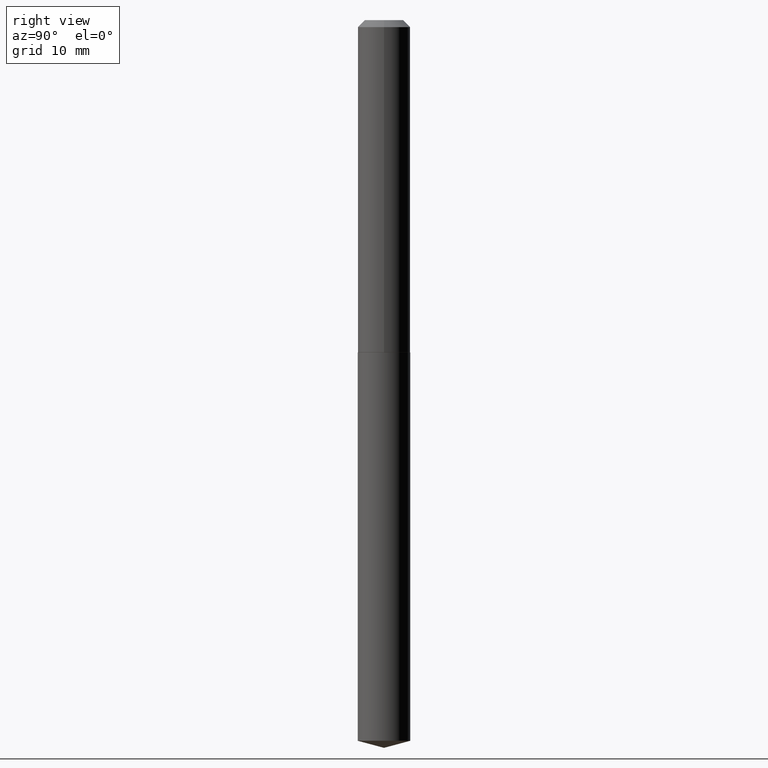
[diagram: clean part render]
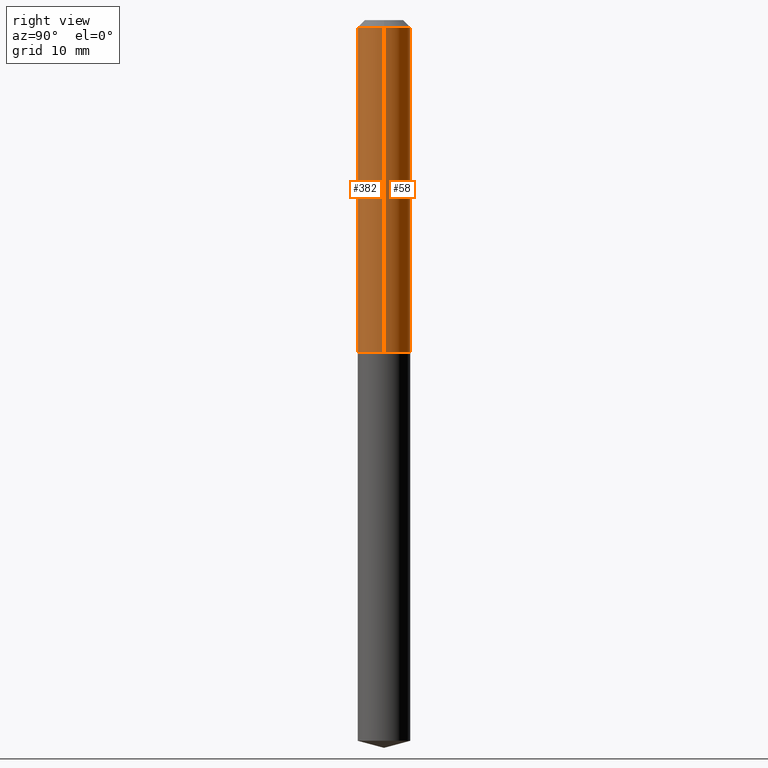
[diagram: same view with one multi-face feature highlighted, each face labeled with its STEP entity id]
A machine part, right view. The highlighted faces form ONE feature: a constant-radius fillet chain: 2 tangent blend faces with common blend radius 2.9769 mm. The faces share edges in the B-rep.
Their STEP definitions:
[1] entity #58 (Cylinder):
#3 = CIRCLE ( 'NONE', #188, 0.1172000000000002068 ) ;
#4 = CARTESIAN_POINT ( 'NONE',  ( 3.628831161498124311E-29, -5.181009158709343395E-15, -1.483899999999999997 ) ) ;
#21 = VERTEX_POINT ( 'NONE', #217 ) ;
#24 = DIRECTION ( 'NONE',  ( 1.000000000000000000, -6.982962677686266711E-15, 4.876176775795935793E-29 ) ) ;
#31 = FACE_OUTER_BOUND ( 'NONE', #262, .T. ) ;
#34 = DIRECTION ( 'NONE',  ( -2.445468806185136597E-29, 3.491481338843145583E-15, 1.000000000000000000 ) ) ;
#37 = LINE ( 'NONE', #345, #379 ) ;
#53 = CARTESIAN_POINT ( 'NONE',  ( -0.1172000000000000125, -1.812302888963257065E-15, -0.03125000000000020123 ) ) ;
#54 = AXIS2_PLACEMENT_3D ( 'NONE', #165, #34, #344 ) ;
#58 = ADVANCED_FACE ( 'NONE', ( #31 ), #128, .T. ) ;
#74 = DIRECTION ( 'NONE',  ( -2.445468806185136877E-29, 3.491481338843145188E-15, 1.000000000000000000 ) ) ;
#82 = EDGE_CURVE ( 'NONE', #378, #273, #3, .T. ) ;
#84 = DIRECTION ( 'NONE',  ( -2.445468806185136597E-29, 3.491481338843145583E-15, 1.000000000000000000 ) ) ;
#102 = CARTESIAN_POINT ( 'NONE',  ( -0.1172000000000002068, -4.348253072398504607E-15, -1.483899999999999997 ) ) ;
#104 = DIRECTION ( 'NONE',  ( -2.445468806185136877E-29, 3.491481338843145188E-15, 1.000000000000000000 ) ) ;
#107 = LINE ( 'NONE', #350, #342 ) ;
#110 = ORIENTED_EDGE ( 'NONE', *, *, #300, .F. ) ;
#115 = VERTEX_POINT ( 'NONE', #53 ) ;
#128 = CYLINDRICAL_SURFACE ( 'NONE', #294, 0.1172000000000001235 ) ;
#146 = ORIENTED_EDGE ( 'NONE', *, *, #234, .T. ) ;
#165 = CARTESIAN_POINT ( 'NONE',  ( 7.642090019328600035E-31, -1.091087918388489897E-16, -0.03125000000000020123 ) ) ;
#188 = AXIS2_PLACEMENT_3D ( 'NONE', #4, #367, #307 ) ;
#205 = CARTESIAN_POINT ( 'NONE',  ( 0.1172000000000002068, -5.999412384534175034E-15, -1.483899999999999997 ) ) ;
#217 = CARTESIAN_POINT ( 'NONE',  ( 0.1172000000000000125, -9.275120176636795560E-16, -0.03125000000000020123 ) ) ;
#234 = EDGE_CURVE ( 'NONE', #273, #115, #37, .T. ) ;
#247 = CARTESIAN_POINT ( 'NONE',  ( 0.000000000000000000, 0.000000000000000000, 0.000000000000000000 ) ) ;
#262 = EDGE_LOOP ( 'NONE', ( #351, #146, #321, #110 ) ) ;
#273 = VERTEX_POINT ( 'NONE', #102 ) ;
#294 = AXIS2_PLACEMENT_3D ( 'NONE', #247, #84, #24 ) ;
#300 = EDGE_CURVE ( 'NONE', #378, #21, #107, .T. ) ;
#307 = DIRECTION ( 'NONE',  ( 1.000000000000000000, -6.982962677686265922E-15, 0.000000000000000000 ) ) ;
#310 = EDGE_CURVE ( 'NONE', #21, #115, #330, .T. ) ;
#321 = ORIENTED_EDGE ( 'NONE', *, *, #310, .F. ) ;
#330 = CIRCLE ( 'NONE', #54, 0.1172000000000000125 ) ;
#342 = VECTOR ( 'NONE', #74, 39.37007874015748143 ) ;
#344 = DIRECTION ( 'NONE',  ( 1.000000000000000000, -6.982962677686266711E-15, 0.000000000000000000 ) ) ;
#345 = CARTESIAN_POINT ( 'NONE',  ( -0.1172000000000001235, 8.327560863108382955E-16, -5.764991925778755427E-30 ) ) ;
#350 = CARTESIAN_POINT ( 'NONE',  ( 0.1172000000000001235, -8.184032258248313428E-16, 5.714879181232842780E-30 ) ) ;
#351 = ORIENTED_EDGE ( 'NONE', *, *, #82, .T. ) ;
#367 = DIRECTION ( 'NONE',  ( -2.445468806185136597E-29, 3.491481338843145583E-15, 1.000000000000000000 ) ) ;
#378 = VERTEX_POINT ( 'NONE', #205 ) ;
#379 = VECTOR ( 'NONE', #104, 39.37007874015748143 ) ;
[2] entity #382 (Cylinder):
#18 = DIRECTION ( 'NONE',  ( -2.445468806185136597E-29, 3.491481338843145583E-15, 1.000000000000000000 ) ) ;
#21 = VERTEX_POINT ( 'NONE', #217 ) ;
#35 = EDGE_LOOP ( 'NONE', ( #227, #42, #142, #326 ) ) ;
#37 = LINE ( 'NONE', #345, #379 ) ;
#42 = ORIENTED_EDGE ( 'NONE', *, *, #242, .T. ) ;
#46 = CARTESIAN_POINT ( 'NONE',  ( 0.000000000000000000, 0.000000000000000000, 0.000000000000000000 ) ) ;
#53 = CARTESIAN_POINT ( 'NONE',  ( -0.1172000000000000125, -1.812302888963257065E-15, -0.03125000000000020123 ) ) ;
#55 = DIRECTION ( 'NONE',  ( 1.000000000000000000, -6.982962677686266711E-15, 4.876176775795935793E-29 ) ) ;
#60 = CIRCLE ( 'NONE', #105, 0.1172000000000000125 ) ;
#74 = DIRECTION ( 'NONE',  ( -2.445468806185136877E-29, 3.491481338843145188E-15, 1.000000000000000000 ) ) ;
#102 = CARTESIAN_POINT ( 'NONE',  ( -0.1172000000000002068, -4.348253072398504607E-15, -1.483899999999999997 ) ) ;
#104 = DIRECTION ( 'NONE',  ( -2.445468806185136877E-29, 3.491481338843145188E-15, 1.000000000000000000 ) ) ;
#105 = AXIS2_PLACEMENT_3D ( 'NONE', #373, #375, #226 ) ;
#107 = LINE ( 'NONE', #350, #342 ) ;
#115 = VERTEX_POINT ( 'NONE', #53 ) ;
#134 = CARTESIAN_POINT ( 'NONE',  ( 3.628831161498124311E-29, -5.181009158709343395E-15, -1.483899999999999997 ) ) ;
#142 = ORIENTED_EDGE ( 'NONE', *, *, #300, .T. ) ;
#163 = DIRECTION ( 'NONE',  ( 1.000000000000000000, -6.982962677686265922E-15, 0.000000000000000000 ) ) ;
#183 = FACE_OUTER_BOUND ( 'NONE', #35, .T. ) ;
#190 = DIRECTION ( 'NONE',  ( -2.445468806185136597E-29, 3.491481338843145583E-15, 1.000000000000000000 ) ) ;
#205 = CARTESIAN_POINT ( 'NONE',  ( 0.1172000000000002068, -5.999412384534175034E-15, -1.483899999999999997 ) ) ;
#211 = CIRCLE ( 'NONE', #257, 0.1172000000000002068 ) ;
#217 = CARTESIAN_POINT ( 'NONE',  ( 0.1172000000000000125, -9.275120176636795560E-16, -0.03125000000000020123 ) ) ;
#226 = DIRECTION ( 'NONE',  ( 1.000000000000000000, -6.982962677686266711E-15, 0.000000000000000000 ) ) ;
#227 = ORIENTED_EDGE ( 'NONE', *, *, #234, .F. ) ;
#232 = AXIS2_PLACEMENT_3D ( 'NONE', #46, #18, #55 ) ;
#234 = EDGE_CURVE ( 'NONE', #273, #115, #37, .T. ) ;
#242 = EDGE_CURVE ( 'NONE', #273, #378, #211, .T. ) ;
#252 = EDGE_CURVE ( 'NONE', #115, #21, #60, .T. ) ;
#257 = AXIS2_PLACEMENT_3D ( 'NONE', #134, #190, #163 ) ;
#273 = VERTEX_POINT ( 'NONE', #102 ) ;
#300 = EDGE_CURVE ( 'NONE', #378, #21, #107, .T. ) ;
#326 = ORIENTED_EDGE ( 'NONE', *, *, #252, .F. ) ;
#342 = VECTOR ( 'NONE', #74, 39.37007874015748143 ) ;
#345 = CARTESIAN_POINT ( 'NONE',  ( -0.1172000000000001235, 8.327560863108382955E-16, -5.764991925778755427E-30 ) ) ;
#350 = CARTESIAN_POINT ( 'NONE',  ( 0.1172000000000001235, -8.184032258248313428E-16, 5.714879181232842780E-30 ) ) ;
#373 = CARTESIAN_POINT ( 'NONE',  ( 7.642090019328600035E-31, -1.091087918388489897E-16, -0.03125000000000020123 ) ) ;
#375 = DIRECTION ( 'NONE',  ( -2.445468806185136597E-29, 3.491481338843145583E-15, 1.000000000000000000 ) ) ;
#378 = VERTEX_POINT ( 'NONE', #205 ) ;
#379 = VECTOR ( 'NONE', #104, 39.37007874015748143 ) ;
#382 = ADVANCED_FACE ( 'NONE', ( #183 ), #387, .T. ) ;
#387 = CYLINDRICAL_SURFACE ( 'NONE', #232, 0.1172000000000001235 ) ;